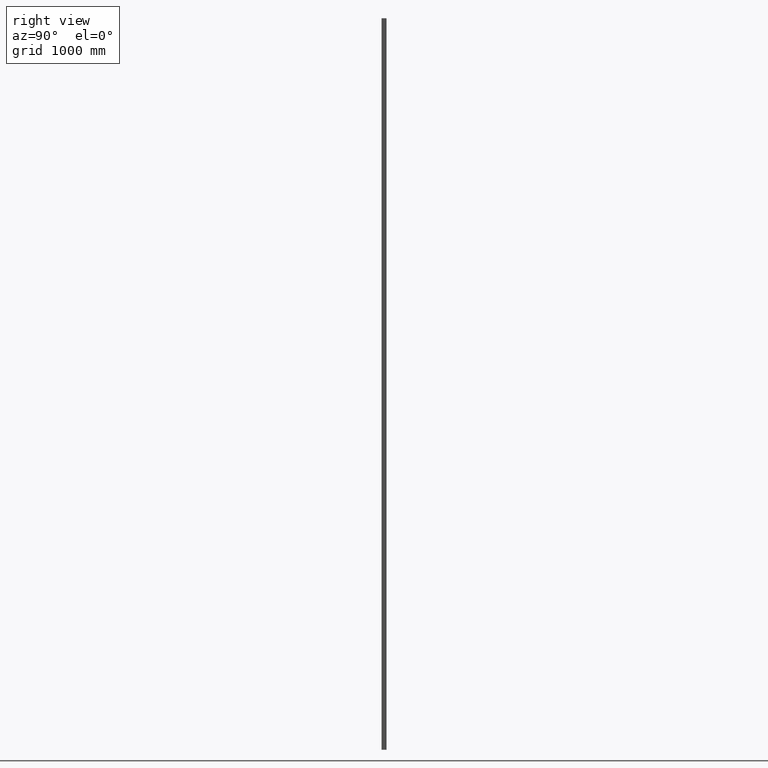
[diagram: clean part render]
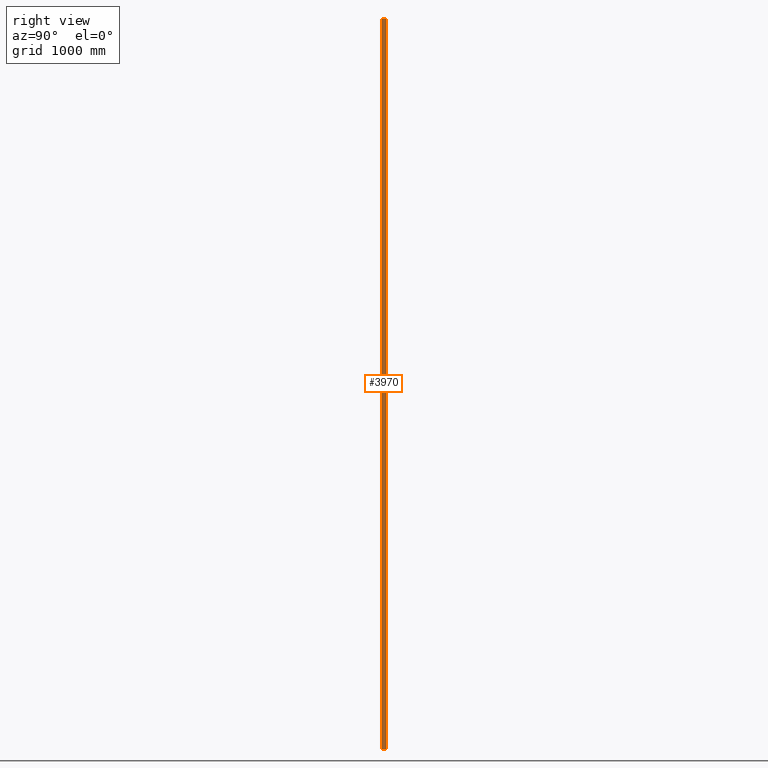
[diagram: same view with one face highlighted and labeled with its STEP entity id]
A machine part, right view. The second image highlights one B-rep face of the part: STEP entity #3970.
In plain terms, the highlighted planar face has unit normal (-1, 0, 0).
Its self-contained STEP definition (entity closure, byte-faithful):
#1048 = LINE ( 'NONE', #11858, #3292 ) ;
#1165 = CARTESIAN_POINT ( 'NONE',  ( 20.00000000000000711, 15.50000000000000000, 3000.000000000000000 ) ) ;
#1794 = CARTESIAN_POINT ( 'NONE',  ( 20.00000000000000711, 15.50000000000000000, 3000.000000000000000 ) ) ;
#2025 = VERTEX_POINT ( 'NONE', #4082 ) ;
#2577 = VERTEX_POINT ( 'NONE', #14831 ) ;
#3292 = VECTOR ( 'NONE', #15446, 1000.000000000000000 ) ;
#3408 = EDGE_CURVE ( 'NONE', #2025, #8542, #13460, .T. ) ;
#3757 = ORIENTED_EDGE ( 'NONE', *, *, #10051, .T. ) ;
#3853 = VECTOR ( 'NONE', #11397, 1000.000000000000000 ) ;
#3970 = ADVANCED_FACE ( 'NONE', ( #8925 ), #6571, .F. ) ;
#4070 = EDGE_CURVE ( 'NONE', #12565, #8542, #11401, .T. ) ;
#4082 = CARTESIAN_POINT ( 'NONE',  ( 20.00000000000000711, -15.50000000000000000, -3000.000000000000000 ) ) ;
#4368 = ORIENTED_EDGE ( 'NONE', *, *, #4070, .F. ) ;
#4670 = EDGE_CURVE ( 'NONE', #2577, #12565, #5727, .T. ) ;
#5396 = EDGE_LOOP ( 'NONE', ( #13315, #4368, #6804, #3757 ) ) ;
#5417 = CARTESIAN_POINT ( 'NONE',  ( 20.00000000000000711, 15.50000000000000000, 3000.000000000000000 ) ) ;
#5727 = LINE ( 'NONE', #14348, #6850 ) ;
#6571 = PLANE ( 'NONE',  #13470 ) ;
#6804 = ORIENTED_EDGE ( 'NONE', *, *, #4670, .F. ) ;
#6850 = VECTOR ( 'NONE', #10809, 1000.000000000000000 ) ;
#8172 = VECTOR ( 'NONE', #12689, 1000.000000000000000 ) ;
#8542 = VERTEX_POINT ( 'NONE', #10560 ) ;
#8925 = FACE_OUTER_BOUND ( 'NONE', #5396, .T. ) ;
#10051 = EDGE_CURVE ( 'NONE', #2577, #2025, #1048, .T. ) ;
#10135 = CARTESIAN_POINT ( 'NONE',  ( 20.00000000000000711, 15.50000000000000000, -3000.000000000000000 ) ) ;
#10560 = CARTESIAN_POINT ( 'NONE',  ( 20.00000000000000711, 15.50000000000000000, -3000.000000000000000 ) ) ;
#10809 = DIRECTION ( 'NONE',  ( -0.000000000000000000, 1.000000000000000000, -0.000000000000000000 ) ) ;
#11397 = DIRECTION ( 'NONE',  ( -0.000000000000000000, 1.000000000000000000, -0.000000000000000000 ) ) ;
#11401 = LINE ( 'NONE', #5417, #8172 ) ;
#11858 = CARTESIAN_POINT ( 'NONE',  ( 20.00000000000000711, -15.50000000000000000, 3000.000000000000000 ) ) ;
#12565 = VERTEX_POINT ( 'NONE', #1165 ) ;
#12689 = DIRECTION ( 'NONE',  ( -0.000000000000000000, -0.000000000000000000, -1.000000000000000000 ) ) ;
#13315 = ORIENTED_EDGE ( 'NONE', *, *, #3408, .T. ) ;
#13460 = LINE ( 'NONE', #10135, #3853 ) ;
#13470 = AXIS2_PLACEMENT_3D ( 'NONE', #1794, #15017, #13947 ) ;
#13947 = DIRECTION ( 'NONE',  ( 0.000000000000000000, 0.000000000000000000, 1.000000000000000000 ) ) ;
#14348 = CARTESIAN_POINT ( 'NONE',  ( 20.00000000000000711, 15.50000000000000000, 3000.000000000000000 ) ) ;
#14831 = CARTESIAN_POINT ( 'NONE',  ( 20.00000000000000711, -15.50000000000000000, 3000.000000000000000 ) ) ;
#15017 = DIRECTION ( 'NONE',  ( -1.000000000000000000, 0.000000000000000000, 0.000000000000000000 ) ) ;
#15446 = DIRECTION ( 'NONE',  ( -0.000000000000000000, -0.000000000000000000, -1.000000000000000000 ) ) ;